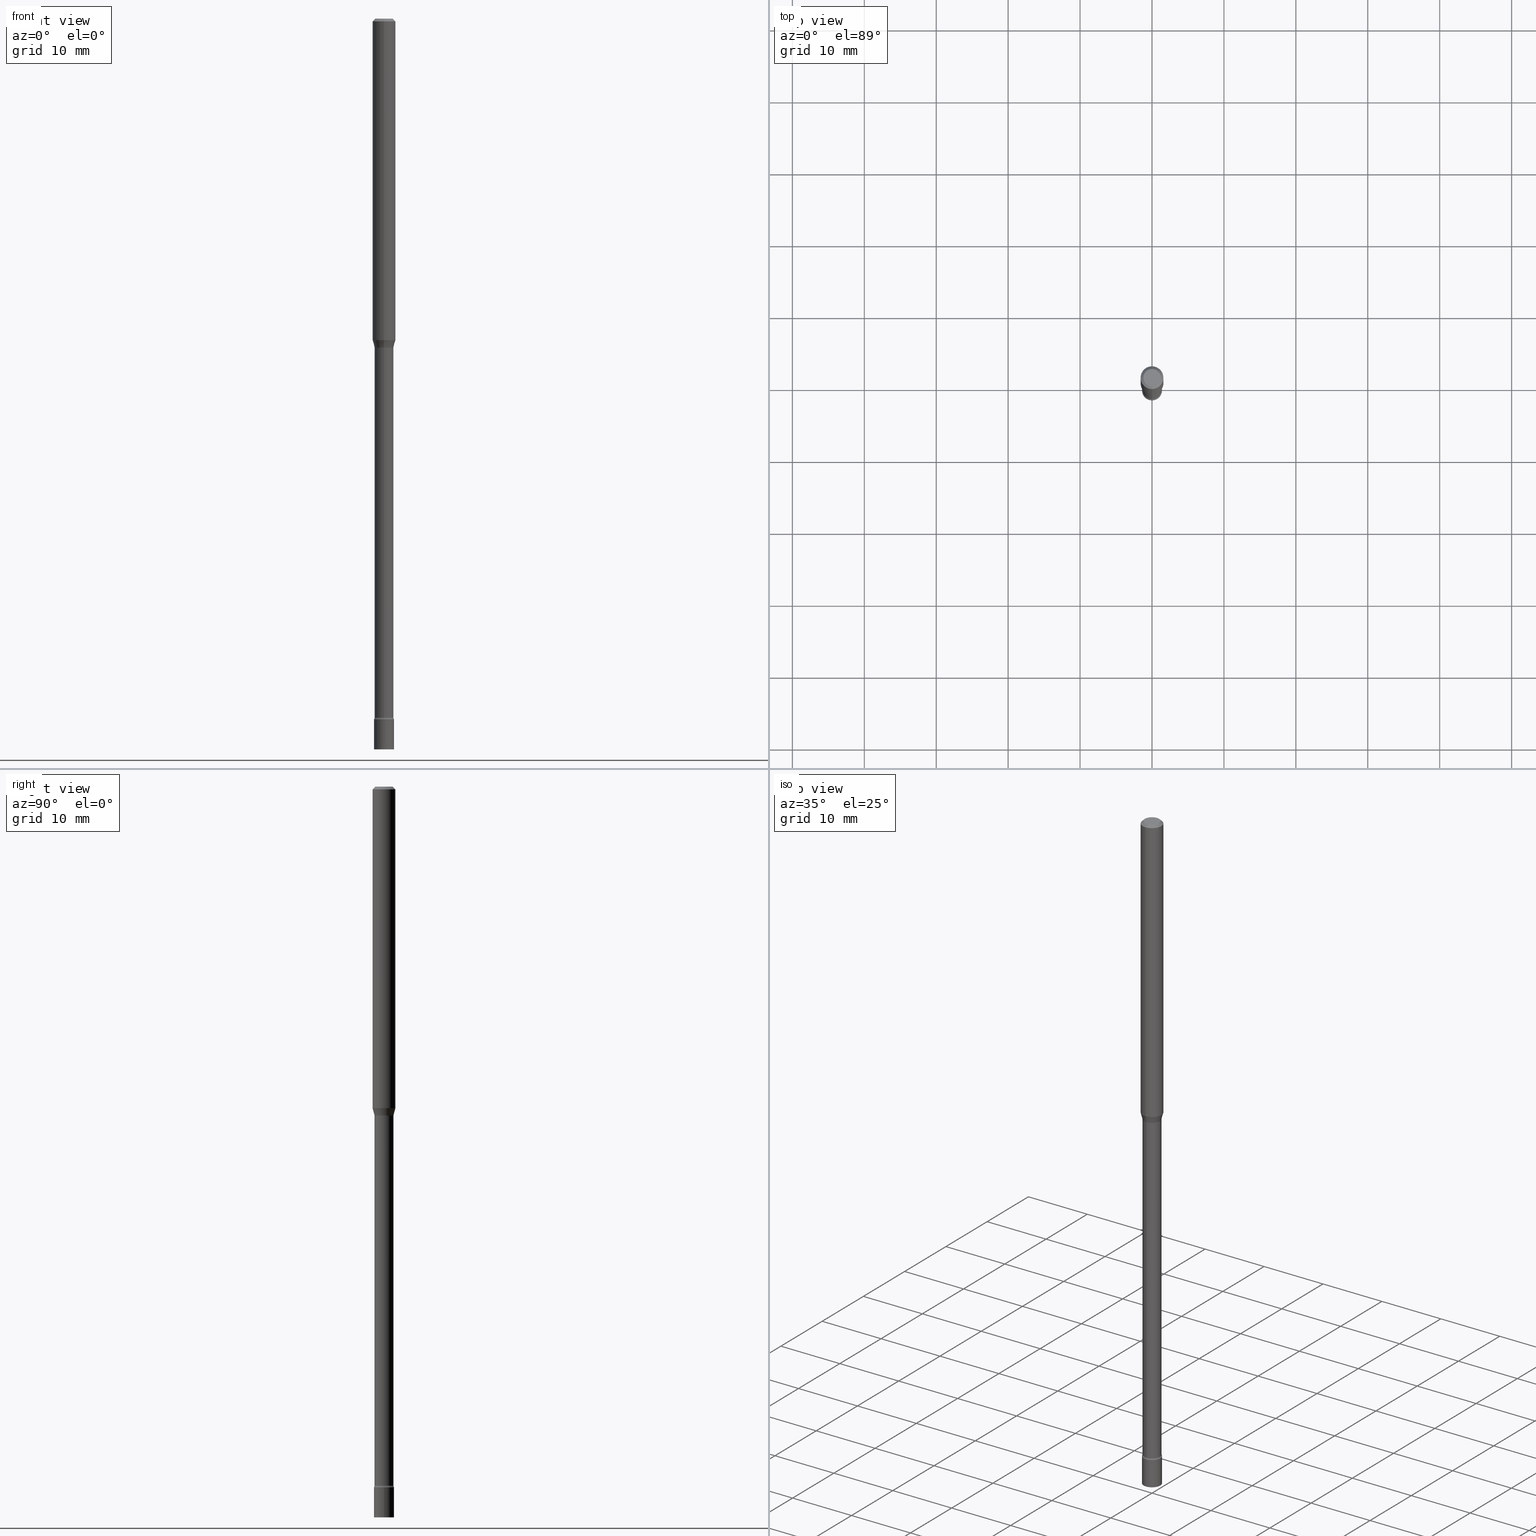
[diagram: canonical four-view strip — front | top / right | iso, engineering-drawing reading convention]
A machine part, canonical four-view strip (front | top / right | iso — engineering-drawing reading convention). The complete STEP part file that produces these views, byte-faithful:
ISO-10303-21;
HEADER;
FILE_DESCRIPTION (( 'STEP AP203' ),
    '1' );
FILE_NAME ('03667.STEP',
    '2024-03-08T22:28:18',
    ( '' ),
    ( '' ),
    'SwSTEP 2.0',
    'SolidWorks 2023',
    '' );
FILE_SCHEMA (( 'CONFIG_CONTROL_DESIGN' ));
ENDSEC;

DATA;
#1 = CARTESIAN_POINT ( 'NONE',  ( -3.773273898774340269E-16, -0.04749999999999999362, 1.369386004952521451E-16 ) ) ;
#2 = ADVANCED_FACE ( 'NONE', ( #21 ), #287, .T. ) ;
#3 = AXIS2_PLACEMENT_3D ( 'NONE', #303, #100, #264 ) ;
#4 = DIRECTION ( 'NONE',  ( -2.445416266167608295E-29, 3.491556579138638148E-15, 1.000000000000000000 ) ) ;
#5 = COORDINATED_UNIVERSAL_TIME_OFFSET ( 5, 0, .BEHIND. ) ;
#6 = CARTESIAN_POINT ( 'NONE',  ( -4.364351673553484300E-16, -0.06250000000000610623, -1.759693851278255616 ) ) ;
#7 = EDGE_CURVE ( 'NONE', #478, #109, #277, .T. ) ;
#8 = EDGE_CURVE ( 'NONE', #504, #284, #439, .T. ) ;
#9 = DIRECTION ( 'NONE',  ( -6.982962677686267499E-15, -1.000000000000000000, 0.000000000000000000 ) ) ;
#10 = CARTESIAN_POINT ( 'NONE',  ( -3.645882506857820221E-16, -0.05221111260567018464, -1.798092501787272646 ) ) ;
#11 = VECTOR ( 'NONE', #186, 39.37007874015749564 ) ;
#12 = LOCAL_TIME ( 17, 28, 18.00000000000000000, #276 ) ;
#13 = ORIENTED_EDGE ( 'NONE', *, *, #445, .T. ) ;
#14 = PERSON_AND_ORGANIZATION ( #270, #70 ) ;
#15 = DIRECTION ( 'NONE',  ( -2.445416266167608014E-29, 3.491556579138637754E-15, 1.000000000000000000 ) ) ;
#16 = CIRCLE ( 'NONE', #85, 0.05500000000000000028 ) ;
#17 = FACE_OUTER_BOUND ( 'NONE', #96, .T. ) ;
#18 = FACE_OUTER_BOUND ( 'NONE', #180, .T. ) ;
#19 = VERTEX_POINT ( 'NONE', #64 ) ;
#20 = FACE_OUTER_BOUND ( 'NONE', #283, .T. ) ;
#21 = FACE_OUTER_BOUND ( 'NONE', #336, .T. ) ;
#22 = EDGE_CURVE ( 'NONE', #482, #296, #225, .T. ) ;
#23 = CARTESIAN_POINT ( 'NONE',  ( 0.05500000000000000028, -3.840629472727446888E-16, 2.681897226687764826E-30 ) ) ;
#24 = CIRCLE ( 'NONE', #48, 0.05500000000000000028 ) ;
#25 = PLANE ( 'NONE',  #40 ) ;
#26 = CARTESIAN_POINT ( 'NONE',  ( 0.000000000000000000, 0.000000000000000000, 0.000000000000000000 ) ) ;
#27 = EDGE_CURVE ( 'NONE', #348, #296, #460, .T. ) ;
#28 = FACE_OUTER_BOUND ( 'NONE', #505, .T. ) ;
#29 = CARTESIAN_POINT ( 'NONE',  ( -3.645882506857820221E-16, -0.05221111260567018464, -1.798092501787272646 ) ) ;
#30 = ORIENTED_EDGE ( 'NONE', *, *, #466, .T. ) ;
#31 = VECTOR ( 'NONE', #503, 39.37007874015748143 ) ;
#32 = CARTESIAN_POINT ( 'NONE',  ( 4.406673132274840462E-29, -6.291561343495739063E-15, -1.801974787463810568 ) ) ;
#33 = MECHANICAL_CONTEXT ( 'NONE', #433, 'mechanical' ) ;
#34 = DIRECTION ( 'NONE',  ( -6.982962677686265133E-15, -1.000000000000000000, 5.232311393739403983E-15 ) ) ;
#35 = ADVANCED_FACE ( 'NONE', ( #28 ), #185, .T. ) ;
#36 = DIRECTION ( 'NONE',  ( -2.445416266167608295E-29, 3.491556579138638148E-15, 1.000000000000000000 ) ) ;
#37 = APPROVAL_DATE_TIME ( #329, #358 ) ;
#38 = ORIENTED_EDGE ( 'NONE', *, *, #338, .T. ) ;
#39 = FACE_OUTER_BOUND ( 'NONE', #165, .T. ) ;
#40 = AXIS2_PLACEMENT_3D ( 'NONE', #307, #346, #378 ) ;
#41 = CC_DESIGN_PERSON_AND_ORGANIZATION_ASSIGNMENT ( #477, #159, ( #511 ) ) ;
#42 = DIRECTION ( 'NONE',  ( -2.445416266167608295E-29, 3.491556579138638148E-15, 1.000000000000000000 ) ) ;
#43 = ADVANCED_FACE ( 'NONE', ( #282 ), #306, .T. ) ;
#44 = DIRECTION ( 'NONE',  ( 2.438088387897960049E-29, -3.491481338843145188E-15, -1.000000000000000000 ) ) ;
#45 = FACE_OUTER_BOUND ( 'NONE', #253, .T. ) ;
#46 = DIRECTION ( 'NONE',  ( -2.438088387897960049E-29, 3.491481338843145188E-15, 1.000000000000000000 ) ) ;
#47 = ORIENTED_EDGE ( 'NONE', *, *, #392, .T. ) ;
#48 = AXIS2_PLACEMENT_3D ( 'NONE', #412, #416, #256 ) ;
#49 = AXIS2_PLACEMENT_3D ( 'NONE', #194, #355, #77 ) ;
#50 = CARTESIAN_POINT ( 'NONE',  ( 0.05500000000000000028, -1.434998830264532732E-14, -4.000000000000000000 ) ) ;
#51 = ORIENTED_EDGE ( 'NONE', *, *, #143, .T. ) ;
#52 = EDGE_CURVE ( 'NONE', #109, #19, #240, .T. ) ;
#53 = CARTESIAN_POINT ( 'NONE',  ( 9.378372871719999252E-29, -1.338983093446346249E-14, -3.834999999999999964 ) ) ;
#54 = ORIENTED_EDGE ( 'NONE', *, *, #272, .T. ) ;
#55 = PERSON_AND_ORGANIZATION_ROLE ( 'creator' ) ;
#56 = CARTESIAN_POINT ( 'NONE',  ( 3.668124399251419553E-31, -5.237334868707967970E-17, -0.01500000000000003067 ) ) ;
#57 = ORIENTED_EDGE ( 'NONE', *, *, #399, .T. ) ;
#58 = VECTOR ( 'NONE', #473, 39.37007874015748143 ) ;
#59 = DIRECTION ( 'NONE',  ( -6.982962677686265922E-15, -1.000000000000000000, 3.491556579138638148E-15 ) ) ;
#60 = ADVANCED_FACE ( 'NONE', ( #18 ), #136, .F. ) ;
#61 = ORIENTED_EDGE ( 'NONE', *, *, #301, .T. ) ;
#62 = VERTEX_POINT ( 'NONE', #206 ) ;
#63 = CARTESIAN_POINT ( 'NONE',  ( 3.790745495281079758E-16, 0.05169999999998692308, -3.825613307291703347 ) ) ;
#64 = CARTESIAN_POINT ( 'NONE',  ( -3.610191704363358766E-16, -0.05170000000000628260, -1.801974787463810346 ) ) ;
#65 = DIRECTION ( 'NONE',  ( 2.445416266167608295E-29, -3.491556579138638148E-15, -1.000000000000000000 ) ) ;
#66 = ORIENTED_EDGE ( 'NONE', *, *, #466, .F. ) ;
#67 = AXIS2_PLACEMENT_3D ( 'NONE', #435, #443, #218 ) ;
#68 = AXIS2_PLACEMENT_3D ( 'NONE', #151, #506, #59 ) ;
#69 = CARTESIAN_POINT ( 'NONE',  ( 4.440892098501057077E-16, 0.06249999999999388683, -1.759693851278256060 ) ) ;
#70 = ORGANIZATION ( 'UNSPECIFIED', 'UNSPECIFIED', '' ) ;
#71 =( CONVERSION_BASED_UNIT ( 'INCH', #442 ) LENGTH_UNIT ( ) NAMED_UNIT ( #234 ) );
#72 = APPROVAL_DATE_TIME ( #80, #502 ) ;
#73 = ORIENTED_EDGE ( 'NONE', *, *, #125, .F. ) ;
#74 = CARTESIAN_POINT ( 'NONE',  ( 9.355217009718392253E-29, -1.335734531231467020E-14, -3.825613307291703347 ) ) ;
#75 = LOCAL_TIME ( 17, 28, 18.00000000000000000, #155 ) ;
#76 = ADVANCED_FACE ( 'NONE', ( #200 ), #331, .T. ) ;
#77 = DIRECTION ( 'NONE',  ( 1.000000000000000000, 0.000000000000000000, 0.000000000000000000 ) ) ;
#78 = DATE_AND_TIME ( #449, #175 ) ;
#79 = ORIENTED_EDGE ( 'NONE', *, *, #118, .T. ) ;
#80 = DATE_AND_TIME ( #320, #12 ) ;
#81 = DIRECTION ( 'NONE',  ( -6.982962677686265133E-15, -1.000000000000000000, 3.491556579138638148E-15 ) ) ;
#82 = CIRCLE ( 'NONE', #216, 0.04749999999999999362 ) ;
#83 = CARTESIAN_POINT ( 'NONE',  ( -3.610191704363808910E-16, -0.05170000000000013474, 1.805134751414680671E-16 ) ) ;
#84 = EDGE_CURVE ( 'NONE', #91, #376, #308, .T. ) ;
#85 = AXIS2_PLACEMENT_3D ( 'NONE', #166, #4, #455 ) ;
#86 = CC_DESIGN_APPROVAL ( #358, ( #363 ) ) ;
#87 = CARTESIAN_POINT ( 'NONE',  ( 9.355217009718392253E-29, -1.335734531231467020E-14, -3.825613307291703347 ) ) ;
#88 = ORIENTED_EDGE ( 'NONE', *, *, #93, .F. ) ;
#89 = DIRECTION ( 'NONE',  ( -6.982962677686265922E-15, -1.000000000000000000, 0.000000000000000000 ) ) ;
#90 = CLOSED_SHELL ( 'NONE', ( #60, #189, #142, #2, #281, #101, #205, #401, #467, #291, #425, #251, #35, #117 ) ) ;
#91 = VERTEX_POINT ( 'NONE', #50 ) ;
#92 = CALENDAR_DATE ( 2024, 8, 3 ) ;
#93 = EDGE_CURVE ( 'NONE', #160, #19, #148, .T. ) ;
#94 = CONICAL_SURFACE ( 'NONE', #352, 0.06250000000000000000, 0.7853981633974483900 ) ;
#95 = CC_DESIGN_APPROVAL ( #345, ( #410 ) ) ;
#96 = EDGE_LOOP ( 'NONE', ( #79, #61 ) ) ;
#97 = CARTESIAN_POINT ( 'NONE',  ( -0.05500000000000000028, -1.328707964024996617E-14, -4.000000000000000000 ) ) ;
#98 = ORIENTED_EDGE ( 'NONE', *, *, #22, .T. ) ;
#99 = ORIENTED_EDGE ( 'NONE', *, *, #382, .F. ) ;
#100 = DIRECTION ( 'NONE',  ( -2.445416266167608295E-29, 3.491556579138638148E-15, 1.000000000000000000 ) ) ;
#101 = ADVANCED_FACE ( 'NONE', ( #292 ), #390, .T. ) ;
#102 = FACE_OUTER_BOUND ( 'NONE', #214, .T. ) ;
#103 = AXIS2_PLACEMENT_3D ( 'NONE', #278, #65, #273 ) ;
#104 = DIRECTION ( 'NONE',  ( -2.445416266167608295E-29, 3.491556579138637754E-15, 1.000000000000000000 ) ) ;
#105 = ORIENTED_EDGE ( 'NONE', *, *, #143, .F. ) ;
#106 = DIRECTION ( 'NONE',  ( -2.445468806185136877E-29, 3.491481338843145188E-15, 1.000000000000000000 ) ) ;
#107 = CARTESIAN_POINT ( 'NONE',  ( -4.657636106015821118E-16, -0.06670000000001359564, -3.825613307291703347 ) ) ;
#108 = DIRECTION ( 'NONE',  ( 6.982962677686265922E-15, 1.000000000000000000, -3.483106191921935554E-15 ) ) ;
#109 = VERTEX_POINT ( 'NONE', #322 ) ;
#110 = AXIS2_PLACEMENT_3D ( 'NONE', #107, #145, #431 ) ;
#111 = AXIS2_PLACEMENT_3D ( 'NONE', #297, #134, #293 ) ;
#112 = CC_DESIGN_APPROVAL ( #502, ( #520 ) ) ;
#113 = DIRECTION ( 'NONE',  ( -2.445416266167608295E-29, 3.491556579138638148E-15, 1.000000000000000000 ) ) ;
#114 = DIRECTION ( 'NONE',  ( -6.982962677686265922E-15, -1.000000000000000000, 3.491556579138638148E-15 ) ) ;
#115 = ORIENTED_EDGE ( 'NONE', *, *, #52, .F. ) ;
#116 = ORIENTED_EDGE ( 'NONE', *, *, #280, .T. ) ;
#117 = ADVANCED_FACE ( 'NONE', ( #290 ), #362, .F. ) ;
#118 = EDGE_CURVE ( 'NONE', #62, #482, #82, .T. ) ;
#119 = EDGE_LOOP ( 'NONE', ( #199, #116, #386, #454 ) ) ;
#120 = APPROVAL_ROLE ( '' ) ;
#121 = AXIS2_PLACEMENT_3D ( 'NONE', #356, #394, #157 ) ;
#122 = LOCAL_TIME ( 17, 28, 18.00000000000000000, #138 ) ;
#123 = DIRECTION ( 'NONE',  ( -2.445416266167608295E-29, 3.491556579138638148E-15, 1.000000000000000000 ) ) ;
#124 = MANIFOLD_SOLID_BREP ( 'Body-Move/Copy2[2]', #90 ) ;
#125 = EDGE_CURVE ( 'NONE', #504, #19, #243, .T. ) ;
#126 = DIRECTION ( 'NONE',  ( -2.445416266167608295E-29, 3.491556579138638148E-15, 1.000000000000000000 ) ) ;
#127 = DIRECTION ( 'NONE',  ( -6.982962677686265133E-15, -1.000000000000000000, 5.232311393739403983E-15 ) ) ;
#128 = CIRCLE ( 'NONE', #241, 0.05221111260566391188 ) ;
#129 = ORIENTED_EDGE ( 'NONE', *, *, #7, .F. ) ;
#130 = SECURITY_CLASSIFICATION_LEVEL ( 'unclassified' ) ;
#131 = CARTESIAN_POINT ( 'NONE',  ( 9.781875224740546387E-29, -1.396592535537258233E-14, -4.000000000000000000 ) ) ;
#132 = ORIENTED_EDGE ( 'NONE', *, *, #156, .T. ) ;
#133 = EDGE_LOOP ( 'NONE', ( #487, #173, #57, #220 ) ) ;
#134 = DIRECTION ( 'NONE',  ( -2.445416266167608295E-29, 3.491556579138638148E-15, 1.000000000000000000 ) ) ;
#135 = CYLINDRICAL_SURFACE ( 'NONE', #153, 0.05170000000000013474 ) ;
#136 = TOROIDAL_SURFACE ( 'NONE', #408, 0.06669999999999999540, 0.01500000000000002200 ) ;
#137 =( GEOMETRIC_REPRESENTATION_CONTEXT ( 3 ) GLOBAL_UNCERTAINTY_ASSIGNED_CONTEXT ( ( #250 ) ) GLOBAL_UNIT_ASSIGNED_CONTEXT ( ( #71, #448, #285 ) ) REPRESENTATION_CONTEXT ( 'NONE', 'WORKASPACE' ) );
#138 = COORDINATED_UNIVERSAL_TIME_OFFSET ( 5, 0, .BEHIND. ) ;
#139 = CARTESIAN_POINT ( 'NONE',  ( 4.739320047520820463E-16, 0.06669999999998688089, -3.825613307291703347 ) ) ;
#140 = ORIENTED_EDGE ( 'NONE', *, *, #158, .F. ) ;
#141 = ORIENTED_EDGE ( 'NONE', *, *, #445, .F. ) ;
#142 = ADVANCED_FACE ( 'NONE', ( #39 ), #480, .F. ) ;
#143 = EDGE_CURVE ( 'NONE', #376, #91, #248, .T. ) ;
#144 = DIRECTION ( 'NONE',  ( -6.982962677686266711E-15, -1.000000000000000000, 3.491556579138638543E-15 ) ) ;
#145 = DIRECTION ( 'NONE',  ( -1.000000000000000000, 6.982962677686265922E-15, -4.883557194083112340E-29 ) ) ;
#146 = ORIENTED_EDGE ( 'NONE', *, *, #514, .T. ) ;
#147 = CARTESIAN_POINT ( 'NONE',  ( 4.303183967390971376E-29, -6.144070643700402488E-15, -1.759693851278255838 ) ) ;
#148 = CIRCLE ( 'NONE', #171, 0.01500000000000001853 ) ;
#149 = AXIS2_PLACEMENT_3D ( 'NONE', #131, #458, #299 ) ;
#150 = CARTESIAN_POINT ( 'NONE',  ( 9.378372871719999252E-29, -1.338983093446346249E-14, -3.834999999999999964 ) ) ;
#151 = CARTESIAN_POINT ( 'NONE',  ( 0.000000000000000000, 0.000000000000000000, 0.000000000000000000 ) ) ;
#152 = CYLINDRICAL_SURFACE ( 'NONE', #472, 0.05500000000000000028 ) ;
#153 = AXIS2_PLACEMENT_3D ( 'NONE', #208, #375, #330 ) ;
#154 = CARTESIAN_POINT ( 'NONE',  ( 3.709822678791147687E-16, 0.05221111260565763218, -1.798092501787273312 ) ) ;
#155 = COORDINATED_UNIVERSAL_TIME_OFFSET ( 5, 0, .BEHIND. ) ;
#156 = EDGE_CURVE ( 'NONE', #457, #188, #162, .T. ) ;
#157 = DIRECTION ( 'NONE',  ( -6.982962677686266711E-15, -1.000000000000000000, 5.284038672464726492E-15 ) ) ;
#158 = EDGE_CURVE ( 'NONE', #212, #284, #16, .T. ) ;
#159 = PERSON_AND_ORGANIZATION_ROLE ( 'design_owner' ) ;
#160 = VERTEX_POINT ( 'NONE', #10 ) ;
#161 = DIRECTION ( 'NONE',  ( 1.839019923739599526E-15, 0.2588190451025248473, 0.9659258262890670910 ) ) ;
#162 = CIRCLE ( 'NONE', #111, 0.06250000000000000000 ) ;
#163 = CARTESIAN_POINT ( 'NONE',  ( 9.378372871719999252E-29, -1.338983093446346249E-14, -3.834999999999999964 ) ) ;
#164 = CARTESIAN_POINT ( 'NONE',  ( 9.355418007508613870E-29, -1.335705747203898990E-14, -3.825613307291703347 ) ) ;
#165 = EDGE_LOOP ( 'NONE', ( #372, #246, #367, #459 ) ) ;
#166 = CARTESIAN_POINT ( 'NONE',  ( 9.378171380752778297E-29, -1.339011948099667451E-14, -3.834999999999999964 ) ) ;
#167 = EDGE_CURVE ( 'NONE', #258, #109, #168, .T. ) ;
#168 = LINE ( 'NONE', #249, #495 ) ;
#169 = APPROVAL_ROLE ( '' ) ;
#170 = LINE ( 'NONE', #343, #31 ) ;
#171 = AXIS2_PLACEMENT_3D ( 'NONE', #203, #374, #9 ) ;
#172 = EDGE_CURVE ( 'NONE', #258, #504, #427, .T. ) ;
#173 = ORIENTED_EDGE ( 'NONE', *, *, #118, .F. ) ;
#174 = PERSON_AND_ORGANIZATION ( #270, #70 ) ;
#175 = LOCAL_TIME ( 17, 28, 18.00000000000000000, #5 ) ;
#176 = EDGE_CURVE ( 'NONE', #284, #212, #24, .T. ) ;
#177 = CARTESIAN_POINT ( 'NONE',  ( -3.840629472726507651E-16, -0.05500000000001337153, -3.834999999999999964 ) ) ;
#178 = CARTESIAN_POINT ( 'NONE',  ( 3.668124399251419553E-31, -5.237334868707967970E-17, -0.01500000000000003067 ) ) ;
#179 = DIRECTION ( 'NONE',  ( 1.000000000000000000, -7.105427357601001070E-15, 4.926316429969952993E-29 ) ) ;
#180 = EDGE_LOOP ( 'NONE', ( #318, #192, #444, #88 ) ) ;
#181 = DIRECTION ( 'NONE',  ( -6.982962677686265133E-15, -1.000000000000000000, 3.491556579138638148E-15 ) ) ;
#182 = CLOSED_SHELL ( 'NONE', ( #43, #187, #456, #76 ) ) ;
#183 = CIRCLE ( 'NONE', #288, 0.01499999999999995087 ) ;
#184 = CARTESIAN_POINT ( 'NONE',  ( 7.069780839401499049E-46, -1.009420774057642989E-31, -2.891033701383311490E-17 ) ) ;
#185 = CYLINDRICAL_SURFACE ( 'NONE', #340, 0.05170000000000013474 ) ;
#186 = DIRECTION ( 'NONE',  ( -1.807323732225329350E-15, -0.2588190451025180194, 0.9659258262890689783 ) ) ;
#187 = ADVANCED_FACE ( 'NONE', ( #366 ), #494, .T. ) ;
#188 = VERTEX_POINT ( 'NONE', #6 ) ;
#189 = ADVANCED_FACE ( 'NONE', ( #451 ), #135, .T. ) ;
#190 = CIRCLE ( 'NONE', #516, 0.05500000000000000028 ) ;
#191 = FACE_OUTER_BOUND ( 'NONE', #485, .T. ) ;
#192 = ORIENTED_EDGE ( 'NONE', *, *, #7, .T. ) ;
#193 = ORIENTED_EDGE ( 'NONE', *, *, #93, .T. ) ;
#194 = CARTESIAN_POINT ( 'NONE',  ( 0.000000000000000000, 0.000000000000000000, 0.000000000000000000 ) ) ;
#195 = EDGE_LOOP ( 'NONE', ( #470, #105 ) ) ;
#196 = CIRCLE ( 'NONE', #217, 0.04749999999999999362 ) ;
#197 = AXIS2_PLACEMENT_3D ( 'NONE', #150, #221, #274 ) ;
#198 = APPROVAL_PERSON_ORGANIZATION ( #488, #502, #120 ) ;
#199 = ORIENTED_EDGE ( 'NONE', *, *, #84, .T. ) ;
#200 = FACE_OUTER_BOUND ( 'NONE', #195, .T. ) ;
#201 = DIRECTION ( 'NONE',  ( -2.445416266167608295E-29, 3.491556579138638148E-15, 1.000000000000000000 ) ) ;
#202 = DESIGN_CONTEXT ( 'detailed design', #490, 'design' ) ;
#203 = CARTESIAN_POINT ( 'NONE',  ( -4.657636106016299364E-16, -0.06670000000000629592, -1.801974787463810346 ) ) ;
#204 = ORIENTED_EDGE ( 'NONE', *, *, #280, .F. ) ;
#205 = ADVANCED_FACE ( 'NONE', ( #337 ), #334, .T. ) ;
#206 = CARTESIAN_POINT ( 'NONE',  ( 3.840629472727447874E-16, 0.04749999999999999362, -1.947592745229184365E-16 ) ) ;
#207 = AXIS2_PLACEMENT_3D ( 'NONE', #333, #298, #254 ) ;
#208 = CARTESIAN_POINT ( 'NONE',  ( 0.000000000000000000, 0.000000000000000000, 0.000000000000000000 ) ) ;
#209 = AXIS2_PLACEMENT_3D ( 'NONE', #74, #36, #315 ) ;
#210 = ORIENTED_EDGE ( 'NONE', *, *, #176, .F. ) ;
#211 = DIRECTION ( 'NONE',  ( 1.000000000000000000, -6.982962677686265922E-15, 4.876176775795935793E-29 ) ) ;
#212 = VERTEX_POINT ( 'NONE', #295 ) ;
#213 = DIRECTION ( 'NONE',  ( 1.000000000000000000, -6.982962677686279332E-15, 0.000000000000000000 ) ) ;
#214 = EDGE_LOOP ( 'NONE', ( #210, #140 ) ) ;
#215 = DIRECTION ( 'NONE',  ( -2.445416266167608295E-29, 3.491556579138638148E-15, 1.000000000000000000 ) ) ;
#216 = AXIS2_PLACEMENT_3D ( 'NONE', #398, #123, #450 ) ;
#217 = AXIS2_PLACEMENT_3D ( 'NONE', #184, #354, #144 ) ;
#218 = DIRECTION ( 'NONE',  ( 1.000000000000000000, -6.982962677686266711E-15, 4.876176775795935793E-29 ) ) ;
#219 = PERSON_AND_ORGANIZATION_ROLE ( 'design_supplier' ) ;
#220 = ORIENTED_EDGE ( 'NONE', *, *, #27, .T. ) ;
#221 = DIRECTION ( 'NONE',  ( -2.445468806185136597E-29, 3.491481338843145583E-15, 1.000000000000000000 ) ) ;
#222 = EDGE_LOOP ( 'NONE', ( #262, #132, #38, #432 ) ) ;
#223 = CARTESIAN_POINT ( 'NONE',  ( 4.397084651944606853E-29, -6.278141704515206695E-15, -1.798092501787273090 ) ) ;
#224 = DIRECTION ( 'NONE',  ( -6.982962677686265922E-15, -1.000000000000000000, 3.491556579138637754E-15 ) ) ;
#225 = LINE ( 'NONE', #510, #396 ) ;
#226 = CARTESIAN_POINT ( 'NONE',  ( 9.355418007508613870E-29, -1.335705747203898990E-14, -3.825613307291703347 ) ) ;
#227 = AXIS2_PLACEMENT_3D ( 'NONE', #223, #236, #34 ) ;
#228 = VECTOR ( 'NONE', #106, 39.37007874015748143 ) ;
#229 = APPROVAL_PERSON_ORGANIZATION ( #235, #358, #407 ) ;
#230 = DIRECTION ( 'NONE',  ( -2.445416266167608295E-29, 3.491556579138638148E-15, 1.000000000000000000 ) ) ;
#231 = CC_DESIGN_DATE_AND_TIME_ASSIGNMENT ( #78, #486, ( #363 ) ) ;
#232 = DIRECTION ( 'NONE',  ( -4.851104656540964275E-15, -0.7071067811865500152, -0.7071067811865450192 ) ) ;
#233 = CARTESIAN_POINT ( 'NONE',  ( 4.397084651944606853E-29, -6.278141704515206695E-15, -1.798092501787273090 ) ) ;
#234 = DIMENSIONAL_EXPONENTS ( 1.000000000000000000, 0.000000000000000000, 0.000000000000000000, 0.000000000000000000, 0.000000000000000000, 0.000000000000000000, 0.000000000000000000 ) ;
#235 = PERSON_AND_ORGANIZATION ( #270, #70 ) ;
#236 = DIRECTION ( 'NONE',  ( -2.445416266167608295E-29, 3.491556579138638148E-15, 1.000000000000000000 ) ) ;
#237 = CARTESIAN_POINT ( 'NONE',  ( 4.075357388646102382E-16, 0.05221111260565763218, -1.798092501787273312 ) ) ;
#238 = PERSON_AND_ORGANIZATION_ROLE ( 'creator' ) ;
#239 = PERSON_AND_ORGANIZATION_ROLE ( 'classification_officer' ) ;
#240 = CIRCLE ( 'NONE', #255, 0.05169999999999998902 ) ;
#241 = AXIS2_PLACEMENT_3D ( 'NONE', #233, #230, #479 ) ;
#242 = CARTESIAN_POINT ( 'NONE',  ( 4.397084651944606853E-29, -6.278141704515206695E-15, -1.798092501787273090 ) ) ;
#243 = LINE ( 'NONE', #83, #446 ) ;
#244 = VERTEX_POINT ( 'NONE', #411 ) ;
#245 = PERSON_AND_ORGANIZATION ( #270, #70 ) ;
#246 = ORIENTED_EDGE ( 'NONE', *, *, #349, .T. ) ;
#247 = AXIS2_PLACEMENT_3D ( 'NONE', #32, #286, #326 ) ;
#248 = CIRCLE ( 'NONE', #149, 0.05500000000000000028 ) ;
#249 = CARTESIAN_POINT ( 'NONE',  ( 3.673505943879727042E-16, 0.05170000000000013474, -1.805134751414680671E-16 ) ) ;
#250 = UNCERTAINTY_MEASURE_WITH_UNIT (LENGTH_MEASURE( 1.000000000000000082E-05 ), #71, 'distance_accuracy_value', 'NONE');
#251 = ADVANCED_FACE ( 'NONE', ( #45 ), #452, .F. ) ;
#252 = DIRECTION ( 'NONE',  ( -2.445416266167608295E-29, 3.491556579138638148E-15, 1.000000000000000000 ) ) ;
#253 = EDGE_LOOP ( 'NONE', ( #373, #463, #413, #265 ) ) ;
#254 = DIRECTION ( 'NONE',  ( 1.000000000000000000, -6.982962677686279332E-15, 0.000000000000000000 ) ) ;
#255 = AXIS2_PLACEMENT_3D ( 'NONE', #353, #311, #383 ) ;
#256 = DIRECTION ( 'NONE',  ( -6.982962677686266711E-15, -1.000000000000000000, 0.000000000000000000 ) ) ;
#257 = AXIS2_PLACEMENT_3D ( 'NONE', #56, #215, #381 ) ;
#258 = VERTEX_POINT ( 'NONE', #63 ) ;
#259 = ORIENTED_EDGE ( 'NONE', *, *, #404, .T. ) ;
#260 = DIRECTION ( 'NONE',  ( 7.105427357601001859E-15, 1.000000000000000000, 0.000000000000000000 ) ) ;
#261 = ORIENTED_EDGE ( 'NONE', *, *, #483, .T. ) ;
#262 = ORIENTED_EDGE ( 'NONE', *, *, #365, .F. ) ;
#263 = PRODUCT_RELATED_PRODUCT_CATEGORY ( 'detail', '', ( #511 ) ) ;
#264 = DIRECTION ( 'NONE',  ( -6.982962677686265922E-15, -1.000000000000000000, 3.491556579138638148E-15 ) ) ;
#265 = ORIENTED_EDGE ( 'NONE', *, *, #176, .T. ) ;
#266 = ORIENTED_EDGE ( 'NONE', *, *, #500, .T. ) ;
#267 = PLANE ( 'NONE',  #342 ) ;
#268 = AXIS2_PLACEMENT_3D ( 'NONE', #332, #126, #127 ) ;
#269 = ORIENTED_EDGE ( 'NONE', *, *, #392, .F. ) ;
#270 = PERSON ( 'UNSPECIFIED', 'UNSPECIFIED', 'UNSPECIFIED', ('UNSPECIFIED'), ('UNSPECIFIED'), ('UNSPECIFIED') ) ;
#271 = LINE ( 'NONE', #23, #228 ) ;
#272 = EDGE_CURVE ( 'NONE', #244, #313, #327, .T. ) ;
#273 = DIRECTION ( 'NONE',  ( 6.982962677686265922E-15, 1.000000000000000000, -3.483106191921935554E-15 ) ) ;
#274 = DIRECTION ( 'NONE',  ( 1.000000000000000000, -6.982962677686279332E-15, 0.000000000000000000 ) ) ;
#275 = CARTESIAN_POINT ( 'NONE',  ( 4.739320047520307703E-16, 0.06669999999999370877, -1.801974787463811012 ) ) ;
#276 = COORDINATED_UNIVERSAL_TIME_OFFSET ( 5, 0, .BEHIND. ) ;
#277 = CIRCLE ( 'NONE', #369, 0.01500000000000001853 ) ;
#278 = CARTESIAN_POINT ( 'NONE',  ( 3.668124399251419553E-31, -5.237334868707967970E-17, -0.01500000000000003067 ) ) ;
#279 = CC_DESIGN_SECURITY_CLASSIFICATION ( #363, ( #410 ) ) ;
#280 = EDGE_CURVE ( 'NONE', #376, #313, #434, .T. ) ;
#281 = ADVANCED_FACE ( 'NONE', ( #20 ), #468, .T. ) ;
#282 = FACE_OUTER_BOUND ( 'NONE', #119, .T. ) ;
#283 = EDGE_LOOP ( 'NONE', ( #47, #344, #426, #417 ) ) ;
#284 = VERTEX_POINT ( 'NONE', #177 ) ;
#285 =( NAMED_UNIT ( * ) SI_UNIT ( $, .STERADIAN. ) SOLID_ANGLE_UNIT ( ) );
#286 = DIRECTION ( 'NONE',  ( -2.445416266167608295E-29, 3.491556579138638148E-15, 1.000000000000000000 ) ) ;
#287 = CONICAL_SURFACE ( 'NONE', #103, 0.06250000000000000000, 0.7853981633974483900 ) ;
#288 = AXIS2_PLACEMENT_3D ( 'NONE', #139, #179, #260 ) ;
#289 = APPROVAL_STATUS ( 'not_yet_approved' ) ;
#290 = FACE_OUTER_BOUND ( 'NONE', #419, .T. ) ;
#291 = ADVANCED_FACE ( 'NONE', ( #17 ), #25, .F. ) ;
#292 = FACE_OUTER_BOUND ( 'NONE', #339, .T. ) ;
#293 = DIRECTION ( 'NONE',  ( -6.982962677686265922E-15, -1.000000000000000000, 4.370956789862821150E-15 ) ) ;
#294 = CARTESIAN_POINT ( 'NONE',  ( 3.840629472728425076E-16, 0.05499999999998603922, -4.000000000000000000 ) ) ;
#295 = CARTESIAN_POINT ( 'NONE',  ( 3.907985046681487321E-16, 0.05499999999998658740, -3.834999999999999964 ) ) ;
#296 = VERTEX_POINT ( 'NONE', #507 ) ;
#297 = CARTESIAN_POINT ( 'NONE',  ( 4.303183967390971376E-29, -6.144070643700402488E-15, -1.759693851278255838 ) ) ;
#298 = DIRECTION ( 'NONE',  ( -2.445468806185136597E-29, 3.491481338843145583E-15, 1.000000000000000000 ) ) ;
#299 = DIRECTION ( 'NONE',  ( 1.000000000000000000, -6.982962677686279332E-15, 0.000000000000000000 ) ) ;
#300 = ORIENTED_EDGE ( 'NONE', *, *, #364, .T. ) ;
#301 = EDGE_CURVE ( 'NONE', #482, #62, #196, .T. ) ;
#302 = ORIENTED_EDGE ( 'NONE', *, *, #125, .T. ) ;
#303 = CARTESIAN_POINT ( 'NONE',  ( 0.000000000000000000, 0.000000000000000000, 0.000000000000000000 ) ) ;
#304 = ORIENTED_EDGE ( 'NONE', *, *, #484, .T. ) ;
#305 = CARTESIAN_POINT ( 'NONE',  ( -4.364351673553916201E-16, -0.06250000000000000000, 2.182222861961648843E-16 ) ) ;
#306 = CYLINDRICAL_SURFACE ( 'NONE', #67, 0.05500000000000000028 ) ;
#307 = CARTESIAN_POINT ( 'NONE',  ( 3.316907271900976096E-16, 0.04749999999999999362, -1.803041060160018329E-16 ) ) ;
#308 = CIRCLE ( 'NONE', #207, 0.05500000000000000028 ) ;
#309 = AXIS2_PLACEMENT_3D ( 'NONE', #226, #430, #181 ) ;
#310 = DIRECTION ( 'NONE',  ( -2.445416266167608295E-29, 3.491556579138638148E-15, 1.000000000000000000 ) ) ;
#311 = DIRECTION ( 'NONE',  ( -2.445416266167608295E-29, 3.491556579138638148E-15, 1.000000000000000000 ) ) ;
#312 = LINE ( 'NONE', #420, #58 ) ;
#313 = VERTEX_POINT ( 'NONE', #512 ) ;
#314 = CC_DESIGN_PERSON_AND_ORGANIZATION_ASSIGNMENT ( #423, #55, ( #410 ) ) ;
#315 = DIRECTION ( 'NONE',  ( -6.982962677686265922E-15, -1.000000000000000000, 0.000000000000000000 ) ) ;
#316 = DIRECTION ( 'NONE',  ( -2.445416266167608295E-29, 3.491556579138638148E-15, 1.000000000000000000 ) ) ;
#317 = AXIS2_PLACEMENT_3D ( 'NONE', #163, #46, #211 ) ;
#318 = ORIENTED_EDGE ( 'NONE', *, *, #514, .F. ) ;
#319 = CARTESIAN_POINT ( 'NONE',  ( -3.610191704362883971E-16, -0.05170000000001364476, -3.825613307291703347 ) ) ;
#320 = CALENDAR_DATE ( 2024, 8, 3 ) ;
#321 = SHAPE_DEFINITION_REPRESENTATION ( #436, #368 ) ;
#322 = CARTESIAN_POINT ( 'NONE',  ( 3.673505943880660363E-16, 0.05169999999999370238, -1.801974787463811012 ) ) ;
#323 = COORDINATED_UNIVERSAL_TIME_OFFSET ( 5, 0, .BEHIND. ) ;
#324 = APPLICATION_PROTOCOL_DEFINITION ( 'international standard', 'config_control_design', 1994, #490 ) ;
#325 = CALENDAR_DATE ( 2024, 8, 3 ) ;
#326 = DIRECTION ( 'NONE',  ( -6.982962677686265133E-15, -1.000000000000000000, 3.491556579138638148E-15 ) ) ;
#327 = CIRCLE ( 'NONE', #197, 0.05500000000000000028 ) ;
#328 = DIRECTION ( 'NONE',  ( -1.000000000000000000, 6.982962677686265922E-15, -4.876176775795935793E-29 ) ) ;
#329 = DATE_AND_TIME ( #397, #75 ) ;
#330 = DIRECTION ( 'NONE',  ( -6.982962677686265922E-15, -1.000000000000000000, 3.491556579138638148E-15 ) ) ;
#331 = PLANE ( 'NONE',  #438 ) ;
#332 = CARTESIAN_POINT ( 'NONE',  ( 4.397084651944606853E-29, -6.278141704515206695E-15, -1.798092501787273090 ) ) ;
#333 = CARTESIAN_POINT ( 'NONE',  ( 9.781875224740546387E-29, -1.396592535537258233E-14, -4.000000000000000000 ) ) ;
#334 = CONICAL_SURFACE ( 'NONE', #268, 0.05221111260566391188, 0.2617993877991501850 ) ;
#335 = ORIENTED_EDGE ( 'NONE', *, *, #500, .F. ) ;
#336 = EDGE_LOOP ( 'NONE', ( #469, #98, #259, #474 ) ) ;
#337 = FACE_OUTER_BOUND ( 'NONE', #496, .T. ) ;
#338 = EDGE_CURVE ( 'NONE', #188, #296, #350, .T. ) ;
#339 = EDGE_LOOP ( 'NONE', ( #30, #13, #269, #384 ) ) ;
#340 = AXIS2_PLACEMENT_3D ( 'NONE', #347, #316, #114 ) ;
#341 = APPROVAL_STATUS ( 'not_yet_approved' ) ;
#342 = AXIS2_PLACEMENT_3D ( 'NONE', #428, #104, #224 ) ;
#343 = CARTESIAN_POINT ( 'NONE',  ( 4.364351673553919652E-16, 0.06249999999999995143, -0.01500000000000024751 ) ) ;
#344 = ORIENTED_EDGE ( 'NONE', *, *, #365, .T. ) ;
#345 = APPROVAL ( #341, 'UNSPECIFIED' ) ;
#346 = DIRECTION ( 'NONE',  ( 2.445416266167608295E-29, -3.491556579138637754E-15, -1.000000000000000000 ) ) ;
#347 = CARTESIAN_POINT ( 'NONE',  ( 0.000000000000000000, 0.000000000000000000, 0.000000000000000000 ) ) ;
#348 = VERTEX_POINT ( 'NONE', #509 ) ;
#349 = EDGE_CURVE ( 'NONE', #258, #212, #183, .T. ) ;
#350 = LINE ( 'NONE', #305, #461 ) ;
#351 = CYLINDRICAL_SURFACE ( 'NONE', #3, 0.06250000000000000000 ) ;
#352 = AXIS2_PLACEMENT_3D ( 'NONE', #513, #395, #108 ) ;
#353 = CARTESIAN_POINT ( 'NONE',  ( 4.406578456487921507E-29, -6.291696924611217615E-15, -1.801974787463810568 ) ) ;
#354 = DIRECTION ( 'NONE',  ( -2.445416266167608295E-29, 3.491556579138638148E-15, 1.000000000000000000 ) ) ;
#355 = DIRECTION ( 'NONE',  ( 0.000000000000000000, 0.000000000000000000, 1.000000000000000000 ) ) ;
#356 = CARTESIAN_POINT ( 'NONE',  ( 4.406578456487921507E-29, -6.291696924611217615E-15, -1.801974787463810568 ) ) ;
#357 = CIRCLE ( 'NONE', #447, 0.06250000000000000000 ) ;
#358 = APPROVAL ( #489, 'UNSPECIFIED' ) ;
#359 = FACE_OUTER_BOUND ( 'NONE', #133, .T. ) ;
#360 = DATE_AND_TIME ( #325, #429 ) ;
#361 = EDGE_LOOP ( 'NONE', ( #304, #499, #335, #73 ) ) ;
#362 = TOROIDAL_SURFACE ( 'NONE', #247, 0.06669999999999999540, 0.01500000000000002200 ) ;
#363 = SECURITY_CLASSIFICATION ( '', '', #130 ) ;
#364 = EDGE_CURVE ( 'NONE', #91, #244, #271, .T. ) ;
#365 = EDGE_CURVE ( 'NONE', #457, #348, #312, .T. ) ;
#366 = FACE_OUTER_BOUND ( 'NONE', #497, .T. ) ;
#367 = ORIENTED_EDGE ( 'NONE', *, *, #158, .T. ) ;
#368 = ADVANCED_BREP_SHAPE_REPRESENTATION ( '03667', ( #492, #124, #49 ), #137 ) ;
#369 = AXIS2_PLACEMENT_3D ( 'NONE', #275, #441, #481 ) ;
#370 = CIRCLE ( 'NONE', #209, 0.05170000000000028045 ) ;
#371 = CC_DESIGN_PERSON_AND_ORGANIZATION_ASSIGNMENT ( #245, #238, ( #520 ) ) ;
#372 = ORIENTED_EDGE ( 'NONE', *, *, #172, .F. ) ;
#373 = ORIENTED_EDGE ( 'NONE', *, *, #349, .F. ) ;
#374 = DIRECTION ( 'NONE',  ( -1.000000000000000000, 6.982962677686265922E-15, -4.883557194083112340E-29 ) ) ;
#375 = DIRECTION ( 'NONE',  ( -2.445416266167608295E-29, 3.491556579138638148E-15, 1.000000000000000000 ) ) ;
#376 = VERTEX_POINT ( 'NONE', #97 ) ;
#377 = ORIENTED_EDGE ( 'NONE', *, *, #172, .T. ) ;
#378 = DIRECTION ( 'NONE',  ( 6.982962677686265922E-15, 1.000000000000000000, -3.491556579138637754E-15 ) ) ;
#379 = AXIS2_PLACEMENT_3D ( 'NONE', #178, #388, #476 ) ;
#380 = AXIS2_PLACEMENT_3D ( 'NONE', #87, #252, #89 ) ;
#381 = DIRECTION ( 'NONE',  ( -6.982962677686265922E-15, -1.000000000000000000, 3.483106191921935554E-15 ) ) ;
#382 = EDGE_CURVE ( 'NONE', #313, #244, #190, .T. ) ;
#383 = DIRECTION ( 'NONE',  ( -6.982962677686266711E-15, -1.000000000000000000, 5.284038672464726492E-15 ) ) ;
#384 = ORIENTED_EDGE ( 'NONE', *, *, #483, .F. ) ;
#385 = FACE_OUTER_BOUND ( 'NONE', #222, .T. ) ;
#386 = ORIENTED_EDGE ( 'NONE', *, *, #272, .F. ) ;
#387 = LINE ( 'NONE', #154, #400 ) ;
#388 = DIRECTION ( 'NONE',  ( -2.445416266167608295E-29, 3.491556579138638148E-15, 1.000000000000000000 ) ) ;
#389 = CARTESIAN_POINT ( 'NONE',  ( -0.05500000000000000028, 3.907985046680551042E-16, -2.705414299640198362E-30 ) ) ;
#390 = CONICAL_SURFACE ( 'NONE', #227, 0.05221111260566391188, 0.2617993877991501850 ) ;
#391 = CIRCLE ( 'NONE', #415, 0.05221111260566391188 ) ;
#392 = EDGE_CURVE ( 'NONE', #188, #457, #357, .T. ) ;
#393 = LINE ( 'NONE', #29, #11 ) ;
#394 = DIRECTION ( 'NONE',  ( -2.445416266167608295E-29, 3.491556579138638148E-15, 1.000000000000000000 ) ) ;
#395 = DIRECTION ( 'NONE',  ( 2.445416266167608295E-29, -3.491556579138638148E-15, -1.000000000000000000 ) ) ;
#396 = VECTOR ( 'NONE', #232, 39.37007874015748143 ) ;
#397 = CALENDAR_DATE ( 2024, 8, 3 ) ;
#398 = CARTESIAN_POINT ( 'NONE',  ( 7.069780839401499049E-46, -1.009420774057642989E-31, -2.891033701383311490E-17 ) ) ;
#399 = EDGE_CURVE ( 'NONE', #62, #348, #170, .T. ) ;
#400 = VECTOR ( 'NONE', #161, 39.37007874015748143 ) ;
#401 = ADVANCED_FACE ( 'NONE', ( #385 ), #351, .T. ) ;
#402 = APPLICATION_PROTOCOL_DEFINITION ( 'international standard', 'config_control_design', 1994, #433 ) ;
#403 = DIRECTION ( 'NONE',  ( -6.982962677686265133E-15, -1.000000000000000000, 5.232311393739403983E-15 ) ) ;
#404 = EDGE_CURVE ( 'NONE', #296, #348, #491, .T. ) ;
#405 = DIRECTION ( 'NONE',  ( -2.445416266167608014E-29, 3.491556579138637754E-15, 1.000000000000000000 ) ) ;
#406 = CC_DESIGN_DATE_AND_TIME_ASSIGNMENT ( #360, #498, ( #520 ) ) ;
#407 = APPROVAL_ROLE ( '' ) ;
#408 = AXIS2_PLACEMENT_3D ( 'NONE', #414, #42, #81 ) ;
#409 = VECTOR ( 'NONE', #424, 39.37007874015748143 ) ;
#410 = PRODUCT_DEFINITION_FORMATION_WITH_SPECIFIED_SOURCE ( 'ANY', '', #511, .NOT_KNOWN. ) ;
#411 = CARTESIAN_POINT ( 'NONE',  ( 0.05500000000000000028, -1.377389388173620747E-14, -3.834999999999999964 ) ) ;
#412 = CARTESIAN_POINT ( 'NONE',  ( 9.378171380752778297E-29, -1.339011948099667451E-14, -3.834999999999999964 ) ) ;
#413 = ORIENTED_EDGE ( 'NONE', *, *, #8, .T. ) ;
#414 = CARTESIAN_POINT ( 'NONE',  ( 4.406673132274840462E-29, -6.291561343495739063E-15, -1.801974787463810568 ) ) ;
#415 = AXIS2_PLACEMENT_3D ( 'NONE', #242, #113, #403 ) ;
#416 = DIRECTION ( 'NONE',  ( -2.445416266167608295E-29, 3.491556579138638148E-15, 1.000000000000000000 ) ) ;
#417 = ORIENTED_EDGE ( 'NONE', *, *, #338, .F. ) ;
#418 = APPROVAL_DATE_TIME ( #464, #345 ) ;
#419 = EDGE_LOOP ( 'NONE', ( #129, #66, #193, #266 ) ) ;
#420 = CARTESIAN_POINT ( 'NONE',  ( 4.440892098500625669E-16, 0.06250000000000000000, -2.182222861961648843E-16 ) ) ;
#421 = CC_DESIGN_PERSON_AND_ORGANIZATION_ASSIGNMENT ( #174, #219, ( #410 ) ) ;
#422 = ORIENTED_EDGE ( 'NONE', *, *, #156, .F. ) ;
#423 = PERSON_AND_ORGANIZATION ( #270, #70 ) ;
#424 = DIRECTION ( 'NONE',  ( -2.445468806185136877E-29, 3.491481338843145188E-15, 1.000000000000000000 ) ) ;
#425 = ADVANCED_FACE ( 'NONE', ( #102 ), #267, .F. ) ;
#426 = ORIENTED_EDGE ( 'NONE', *, *, #404, .F. ) ;
#427 = CIRCLE ( 'NONE', #380, 0.05170000000000028045 ) ;
#428 = CARTESIAN_POINT ( 'NONE',  ( 3.840629472728384646E-16, 0.05499999999998661515, -3.834999999999999964 ) ) ;
#429 = LOCAL_TIME ( 17, 28, 18.00000000000000000, #323 ) ;
#430 = DIRECTION ( 'NONE',  ( -2.445416266167608295E-29, 3.491556579138638148E-15, 1.000000000000000000 ) ) ;
#431 = DIRECTION ( 'NONE',  ( -6.982962677686266711E-15, -1.000000000000000000, 0.000000000000000000 ) ) ;
#432 = ORIENTED_EDGE ( 'NONE', *, *, #27, .F. ) ;
#433 = APPLICATION_CONTEXT ( 'configuration controlled 3d designs of mechanical parts and assemblies' ) ;
#434 = LINE ( 'NONE', #389, #409 ) ;
#435 = CARTESIAN_POINT ( 'NONE',  ( 0.000000000000000000, 0.000000000000000000, 0.000000000000000000 ) ) ;
#436 = PRODUCT_DEFINITION_SHAPE ( 'NONE', 'NONE',  #520 ) ;
#437 = DIRECTION ( 'NONE',  ( -2.445468806185136597E-29, 3.491481338843145583E-15, 1.000000000000000000 ) ) ;
#438 = AXIS2_PLACEMENT_3D ( 'NONE', #294, #44, #328 ) ;
#439 = CIRCLE ( 'NONE', #110, 0.01499999999999995087 ) ;
#440 = AXIS2_PLACEMENT_3D ( 'NONE', #164, #201, #462 ) ;
#441 = DIRECTION ( 'NONE',  ( 1.000000000000000000, -7.105427357601001070E-15, 4.926316429969952993E-29 ) ) ;
#442 = LENGTH_MEASURE_WITH_UNIT ( LENGTH_MEASURE( 0.02539999999999999897 ), #519 );
#443 = DIRECTION ( 'NONE',  ( -2.445468806185136597E-29, 3.491481338843145583E-15, 1.000000000000000000 ) ) ;
#444 = ORIENTED_EDGE ( 'NONE', *, *, #52, .T. ) ;
#445 = EDGE_CURVE ( 'NONE', #478, #457, #387, .T. ) ;
#446 = VECTOR ( 'NONE', #405, 39.37007874015748143 ) ;
#447 = AXIS2_PLACEMENT_3D ( 'NONE', #147, #310, #475 ) ;
#448 =( NAMED_UNIT ( * ) PLANE_ANGLE_UNIT ( ) SI_UNIT ( $, .RADIAN. ) );
#449 = CALENDAR_DATE ( 2024, 8, 3 ) ;
#450 = DIRECTION ( 'NONE',  ( -6.982962677686266711E-15, -1.000000000000000000, 3.491556579138638543E-15 ) ) ;
#451 = FACE_OUTER_BOUND ( 'NONE', #361, .T. ) ;
#452 = TOROIDAL_SURFACE ( 'NONE', #309, 0.06670000000000024520, 0.01499999999999995608 ) ;
#453 = DIRECTION ( 'NONE',  ( -2.445416266167608014E-29, 3.491556579138637754E-15, 1.000000000000000000 ) ) ;
#454 = ORIENTED_EDGE ( 'NONE', *, *, #364, .F. ) ;
#455 = DIRECTION ( 'NONE',  ( -6.982962677686266711E-15, -1.000000000000000000, 0.000000000000000000 ) ) ;
#456 = ADVANCED_FACE ( 'NONE', ( #191 ), #152, .T. ) ;
#457 = VERTEX_POINT ( 'NONE', #69 ) ;
#458 = DIRECTION ( 'NONE',  ( -2.445468806185136597E-29, 3.491481338843145583E-15, 1.000000000000000000 ) ) ;
#459 = ORIENTED_EDGE ( 'NONE', *, *, #8, .F. ) ;
#460 = CIRCLE ( 'NONE', #379, 0.06250000000000000000 ) ;
#461 = VECTOR ( 'NONE', #15, 39.37007874015748143 ) ;
#462 = DIRECTION ( 'NONE',  ( -6.982962677686265133E-15, -1.000000000000000000, 3.491556579138638148E-15 ) ) ;
#463 = ORIENTED_EDGE ( 'NONE', *, *, #484, .F. ) ;
#464 = DATE_AND_TIME ( #92, #122 ) ;
#465 = ORIENTED_EDGE ( 'NONE', *, *, #382, .T. ) ;
#466 = EDGE_CURVE ( 'NONE', #160, #478, #128, .T. ) ;
#467 = ADVANCED_FACE ( 'NONE', ( #359 ), #94, .T. ) ;
#468 = CYLINDRICAL_SURFACE ( 'NONE', #68, 0.06250000000000000000 ) ;
#469 = ORIENTED_EDGE ( 'NONE', *, *, #301, .F. ) ;
#470 = ORIENTED_EDGE ( 'NONE', *, *, #84, .F. ) ;
#471 = DIRECTION ( 'NONE',  ( -2.445468806185136597E-29, 3.491481338843145583E-15, 1.000000000000000000 ) ) ;
#472 = AXIS2_PLACEMENT_3D ( 'NONE', #26, #437, #515 ) ;
#473 = DIRECTION ( 'NONE',  ( -2.445416266167608014E-29, 3.491556579138637754E-15, 1.000000000000000000 ) ) ;
#474 = ORIENTED_EDGE ( 'NONE', *, *, #399, .F. ) ;
#475 = DIRECTION ( 'NONE',  ( -6.982962677686265922E-15, -1.000000000000000000, 4.370956789862821150E-15 ) ) ;
#476 = DIRECTION ( 'NONE',  ( -6.982962677686265922E-15, -1.000000000000000000, 3.483106191921935554E-15 ) ) ;
#477 = PERSON_AND_ORGANIZATION ( #270, #70 ) ;
#478 = VERTEX_POINT ( 'NONE', #237 ) ;
#479 = DIRECTION ( 'NONE',  ( -6.982962677686265133E-15, -1.000000000000000000, 5.232311393739403983E-15 ) ) ;
#480 = TOROIDAL_SURFACE ( 'NONE', #440, 0.06670000000000024520, 0.01499999999999995608 ) ;
#481 = DIRECTION ( 'NONE',  ( 7.105427357601001859E-15, 1.000000000000000000, 0.000000000000000000 ) ) ;
#482 = VERTEX_POINT ( 'NONE', #1 ) ;
#483 = EDGE_CURVE ( 'NONE', #160, #188, #393, .T. ) ;
#484 = EDGE_CURVE ( 'NONE', #504, #258, #370, .T. ) ;
#485 = EDGE_LOOP ( 'NONE', ( #204, #51, #300, #99 ) ) ;
#486 = DATE_TIME_ROLE ( 'classification_date' ) ;
#487 = ORIENTED_EDGE ( 'NONE', *, *, #22, .F. ) ;
#488 = PERSON_AND_ORGANIZATION ( #270, #70 ) ;
#489 = APPROVAL_STATUS ( 'not_yet_approved' ) ;
#490 = APPLICATION_CONTEXT ( 'configuration controlled 3d designs of mechanical parts and assemblies' ) ;
#491 = CIRCLE ( 'NONE', #257, 0.06250000000000000000 ) ;
#492 = MANIFOLD_SOLID_BREP ( 'Body-Move/Copy2[1]', #182 ) ;
#493 = CC_DESIGN_PERSON_AND_ORGANIZATION_ASSIGNMENT ( #518, #239, ( #363 ) ) ;
#494 = PLANE ( 'NONE',  #317 ) ;
#495 = VECTOR ( 'NONE', #453, 39.37007874015748143 ) ;
#496 = EDGE_LOOP ( 'NONE', ( #141, #146, #261, #422 ) ) ;
#497 = EDGE_LOOP ( 'NONE', ( #54, #465 ) ) ;
#498 = DATE_TIME_ROLE ( 'creation_date' ) ;
#499 = ORIENTED_EDGE ( 'NONE', *, *, #167, .T. ) ;
#500 = EDGE_CURVE ( 'NONE', #19, #109, #508, .T. ) ;
#501 = ORIENTED_EDGE ( 'NONE', *, *, #167, .F. ) ;
#502 = APPROVAL ( #289, 'UNSPECIFIED' ) ;
#503 = DIRECTION ( 'NONE',  ( 4.937700262164548042E-15, 0.7071067811865451302, -0.7071067811865499042 ) ) ;
#504 = VERTEX_POINT ( 'NONE', #319 ) ;
#505 = EDGE_LOOP ( 'NONE', ( #501, #377, #302, #115 ) ) ;
#506 = DIRECTION ( 'NONE',  ( -2.445416266167608295E-29, 3.491556579138638148E-15, 1.000000000000000000 ) ) ;
#507 = CARTESIAN_POINT ( 'NONE',  ( -4.364351673553912750E-16, -0.06250000000000005551, -0.01499999999999981209 ) ) ;
#508 = CIRCLE ( 'NONE', #121, 0.05169999999999998902 ) ;
#509 = CARTESIAN_POINT ( 'NONE',  ( 4.440892098501059049E-16, 0.06249999999999995837, -0.01500000000000024751 ) ) ;
#510 = CARTESIAN_POINT ( 'NONE',  ( -4.287811248607203282E-16, -0.06250000000000005551, -0.01499999999999981209 ) ) ;
#511 = PRODUCT ( '03667', '03667', '', ( #33 ) ) ;
#512 = CARTESIAN_POINT ( 'NONE',  ( -0.05500000000000000028, -1.328707964024996617E-14, -3.834999999999999964 ) ) ;
#513 = CARTESIAN_POINT ( 'NONE',  ( 3.668124399251419553E-31, -5.237334868707967970E-17, -0.01500000000000003067 ) ) ;
#514 = EDGE_CURVE ( 'NONE', #478, #160, #391, .T. ) ;
#515 = DIRECTION ( 'NONE',  ( 1.000000000000000000, -6.982962677686266711E-15, 4.876176775795935793E-29 ) ) ;
#516 = AXIS2_PLACEMENT_3D ( 'NONE', #53, #471, #213 ) ;
#517 = APPROVAL_PERSON_ORGANIZATION ( #14, #345, #169 ) ;
#518 = PERSON_AND_ORGANIZATION ( #270, #70 ) ;
#519 =( LENGTH_UNIT ( ) NAMED_UNIT ( * ) SI_UNIT ( $, .METRE. ) );
#520 = PRODUCT_DEFINITION ( 'UNKNOWN', '', #410, #202 ) ;
ENDSEC;
END-ISO-10303-21;
